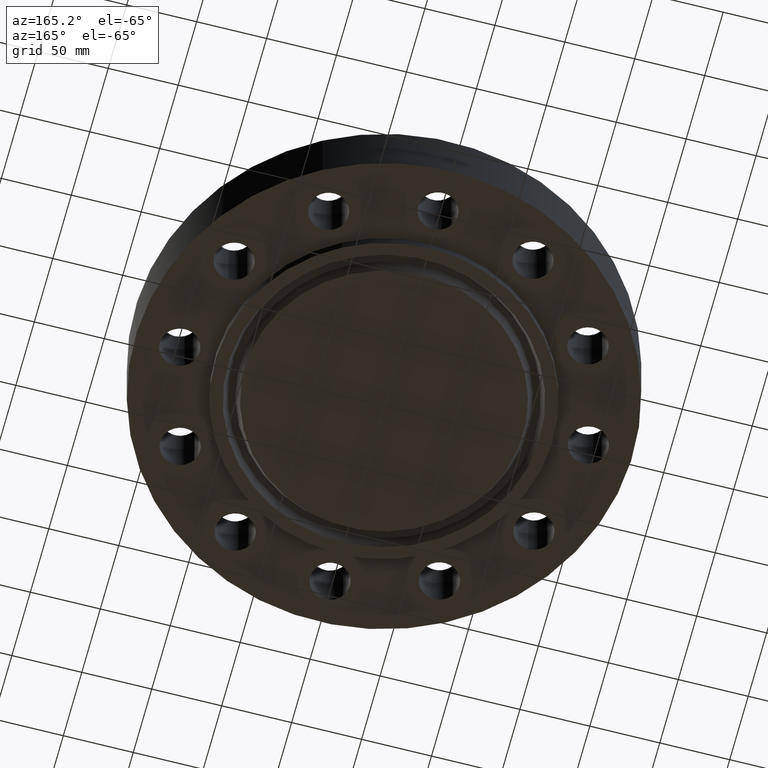
[diagram: clean part render]
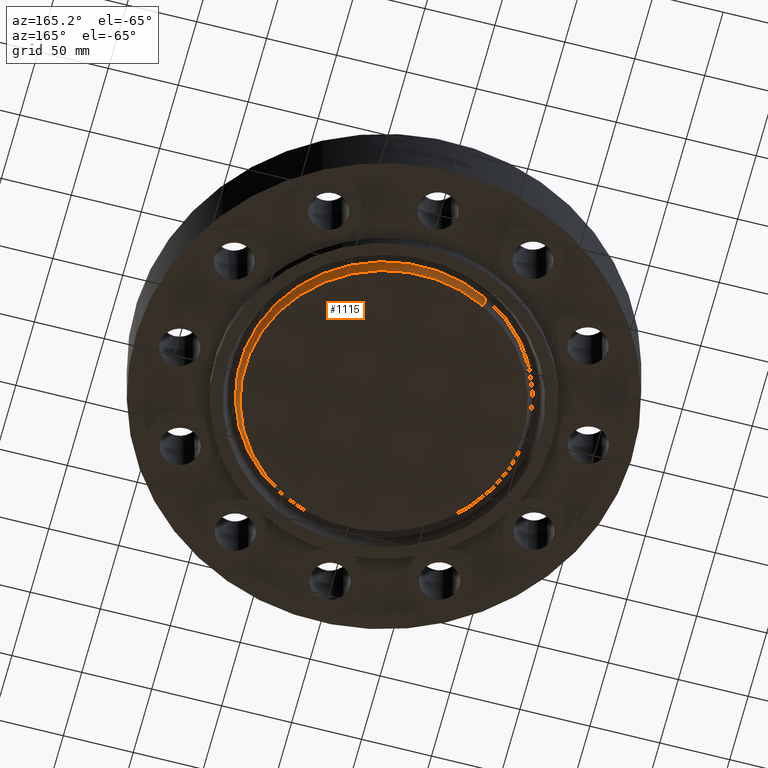
[diagram: same view with one face highlighted and labeled with its STEP entity id]
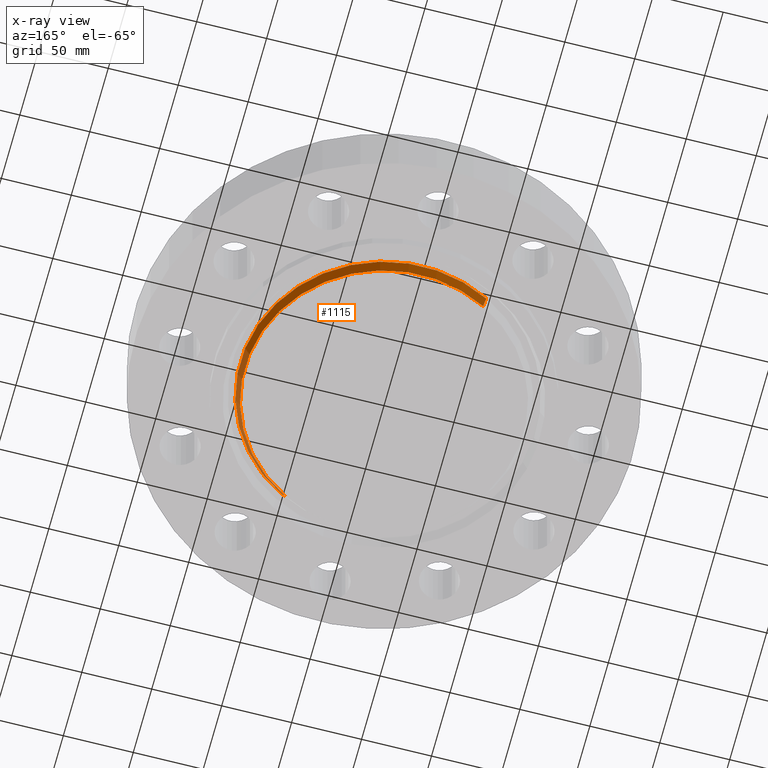
[diagram: x-ray of the same camera — body ghosted, the highlighted face saturated]
A machine part, auxiliary view. The second image highlights one B-rep face of the part: STEP entity #1115.
The next image is the same camera in x-ray: the body ghosted, the highlighted face saturated — about 0% of this face is hidden behind the body in this view.
In plain terms, the highlighted conical surface has half-angle 23 deg.
Its self-contained STEP definition (entity closure, byte-faithful):
#42=AXIS2_PLACEMENT_3D('Circle Axis2P3D',#40,#41,$) ;
#1065=AXIS2_PLACEMENT_3D('Circle Axis2P3D',#1063,#1064,$) ;
#1097=AXIS2_PLACEMENT_3D('Cone Axis2P3D',#1094,#1095,#1096) ;
#40=CARTESIAN_POINT('Axis2P3D Location',(0.,-1.39870617276E-016,-0.312500000001)) ;
#44=CARTESIAN_POINT('Vertex',(-1.88024703422,3.44176910993,-0.312500000001)) ;
#46=CARTESIAN_POINT('Vertex',(1.88024703422,-3.44176910993,-0.312500000001)) ;
#1060=CARTESIAN_POINT('Vertex',(1.93996740861,-3.55108652198,-0.0190396522348)) ;
#1063=CARTESIAN_POINT('Axis2P3D Location',(0.,0.,-0.0190396522348)) ;
#1067=CARTESIAN_POINT('Vertex',(-1.93996740861,3.55108652198,-0.0190396522348)) ;
#1094=CARTESIAN_POINT('Axis2P3D Location',(0.,0.,-0.372500000001)) ;
#1099=CARTESIAN_POINT('Line Origine',(-1.91010722141,3.49642781595,-0.165769826118)) ;
#1104=CARTESIAN_POINT('Line Origine',(1.91010722141,-3.49642781595,-0.165769826118)) ;
#41=DIRECTION('Axis2P3D Direction',(0.,0.,-0.0393700787402)) ;
#1064=DIRECTION('Axis2P3D Direction',(0.,0.,0.0393700787402)) ;
#1095=DIRECTION('Axis2P3D Direction',(0.,0.,0.0393700787402)) ;
#1096=DIRECTION('Axis2P3D XDirection',(-0.0188750212049,0.0345504945626,0.)) ;
#1100=DIRECTION('Vector Direction',(-0.00737505833565,0.0134999537303,0.0362403485611)) ;
#1105=DIRECTION('Vector Direction',(0.00737505833565,-0.0134999537303,0.0362403485611)) ;
#1101=VECTOR('Line Direction',#1100,0.0393700787402) ;
#1106=VECTOR('Line Direction',#1105,0.0393700787402) ;
#1110=ORIENTED_EDGE('',*,*,#1103,.F.) ;
#1111=ORIENTED_EDGE('',*,*,#1069,.F.) ;
#1112=ORIENTED_EDGE('',*,*,#1108,.T.) ;
#1113=ORIENTED_EDGE('',*,*,#48,.F.) ;
#1115=ADVANCED_FACE('PartBody',(#1114),#1098,.T.) ;
#43=CIRCLE('generated circle',#42,3.92187500002) ;
#1066=CIRCLE('generated circle',#1065,4.0464415272) ;
#1098=CONICAL_SURFACE('Cone',#1097,3.89640651104,0.401425727959) ;
#48=EDGE_CURVE('',#45,#47,#43,.T.) ;
#1069=EDGE_CURVE('',#1061,#1068,#1066,.T.) ;
#1103=EDGE_CURVE('',#1068,#45,#1102,.F.) ;
#1108=EDGE_CURVE('',#1061,#47,#1107,.F.) ;
#1109=EDGE_LOOP('',(#1110,#1111,#1112,#1113)) ;
#1114=FACE_OUTER_BOUND('',#1109,.T.) ;
#1102=LINE('Line',#1099,#1101) ;
#1107=LINE('Line',#1104,#1106) ;
#45=VERTEX_POINT('',#44) ;
#47=VERTEX_POINT('',#46) ;
#1061=VERTEX_POINT('',#1060) ;
#1068=VERTEX_POINT('',#1067) ;